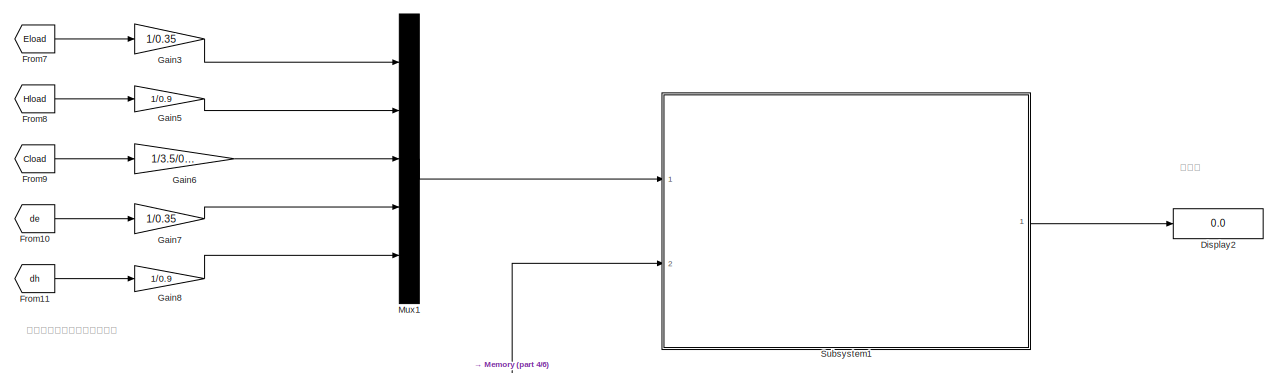
[diagram: root canvas - part 1/6, top center region]
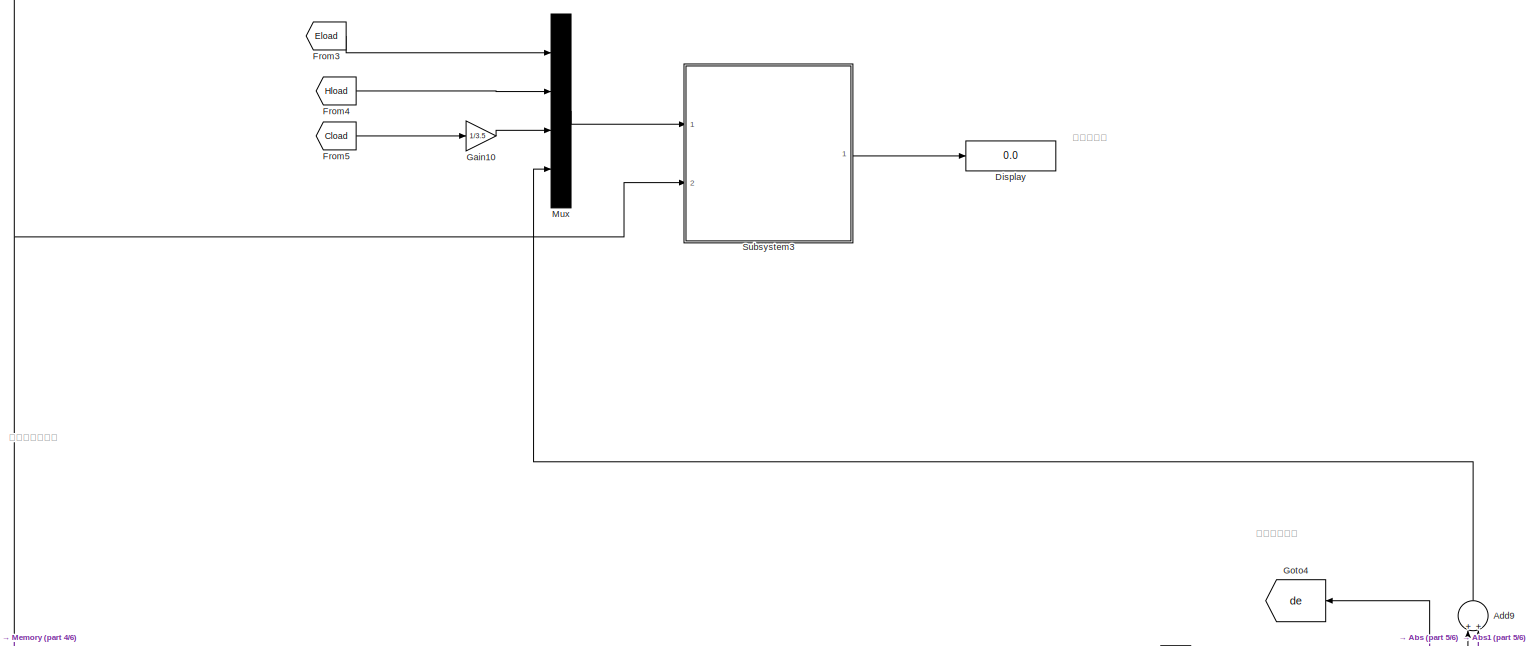
[diagram: root canvas - part 2/6, middle right region]
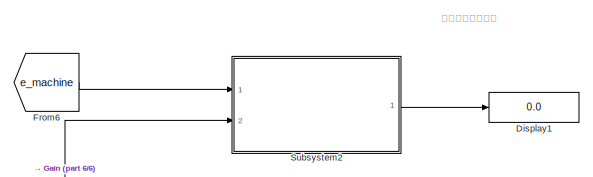
[diagram: root canvas - part 3/6, middle left region]
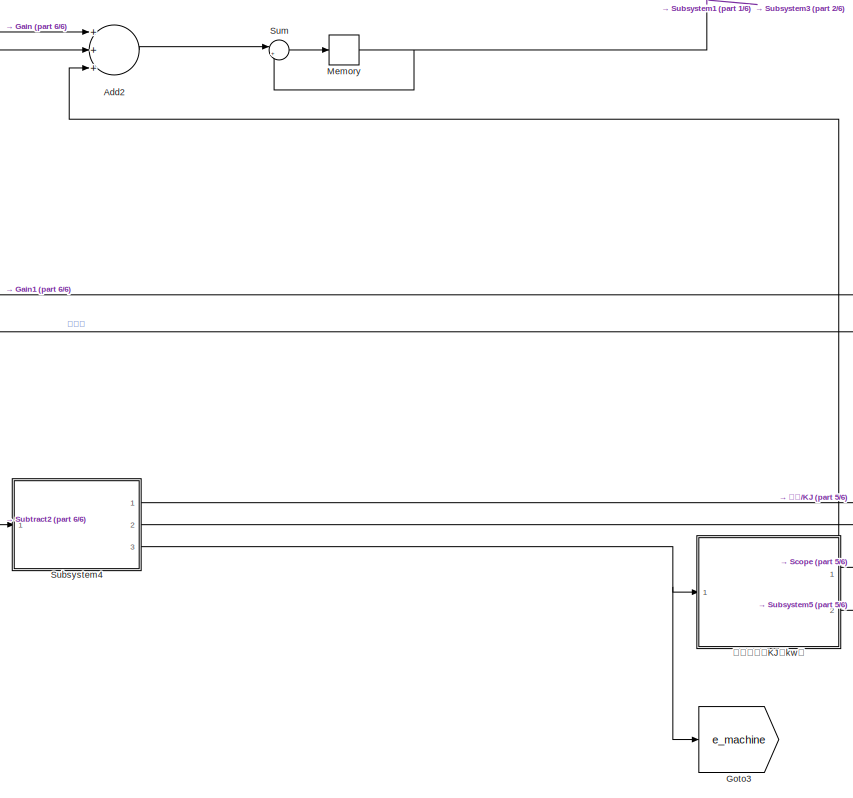
[diagram: root canvas - part 4/6, bottom center region]
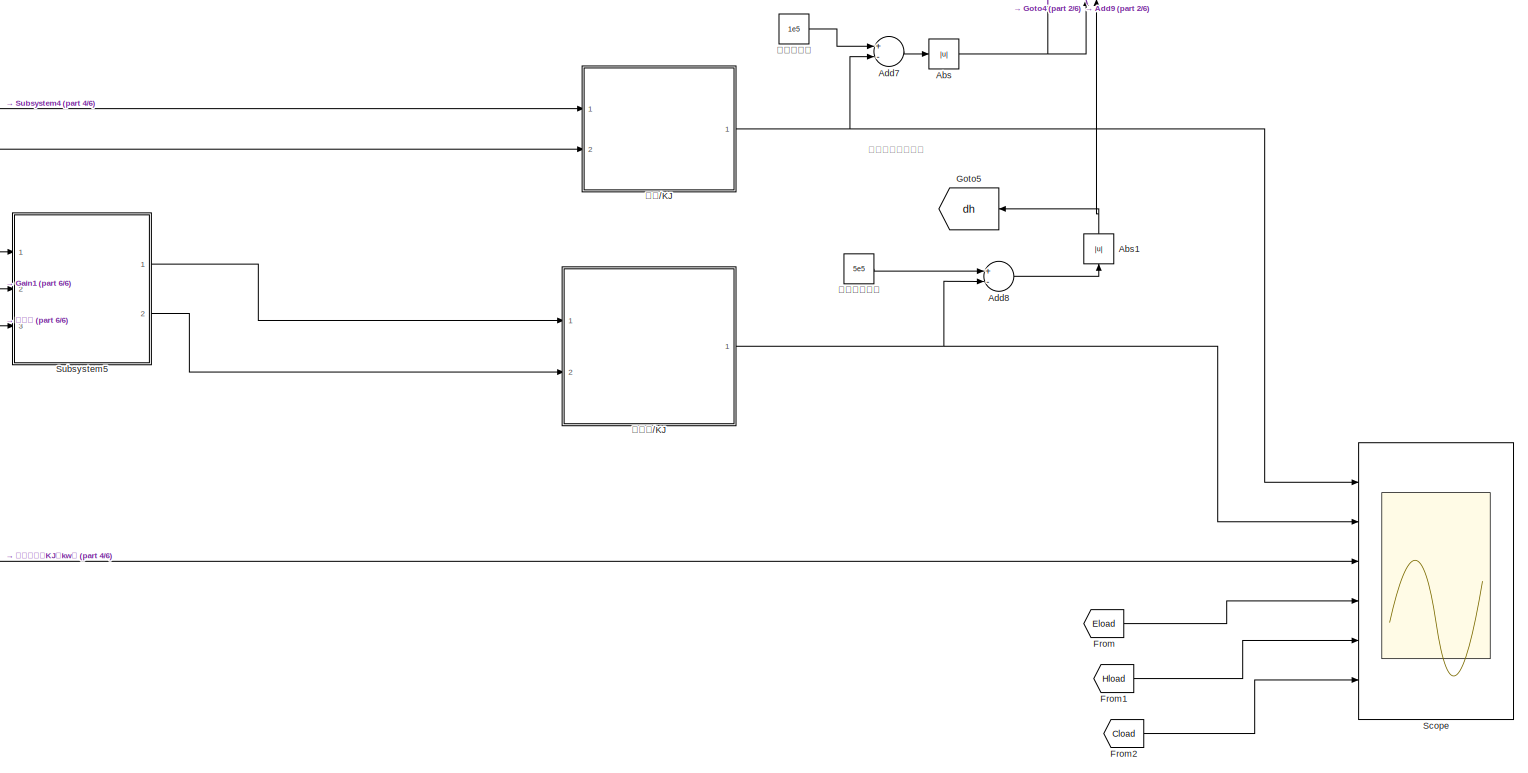
[diagram: root canvas - part 5/6, bottom right region]
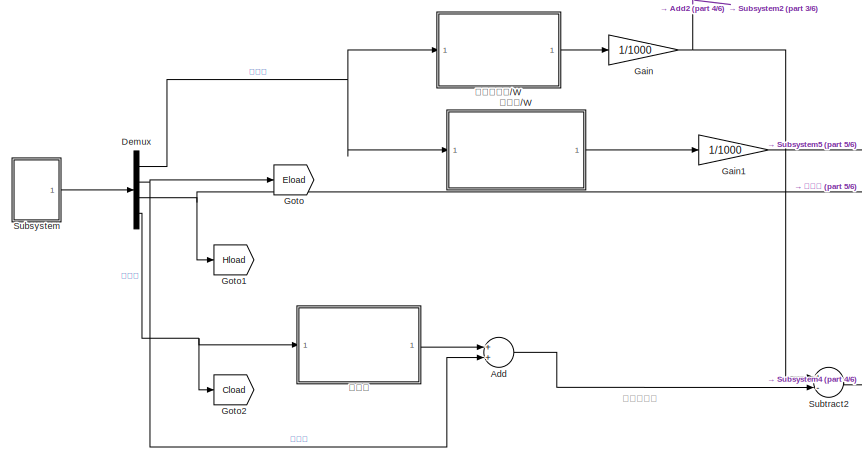
[diagram: root canvas - part 6/6, bottom left region]
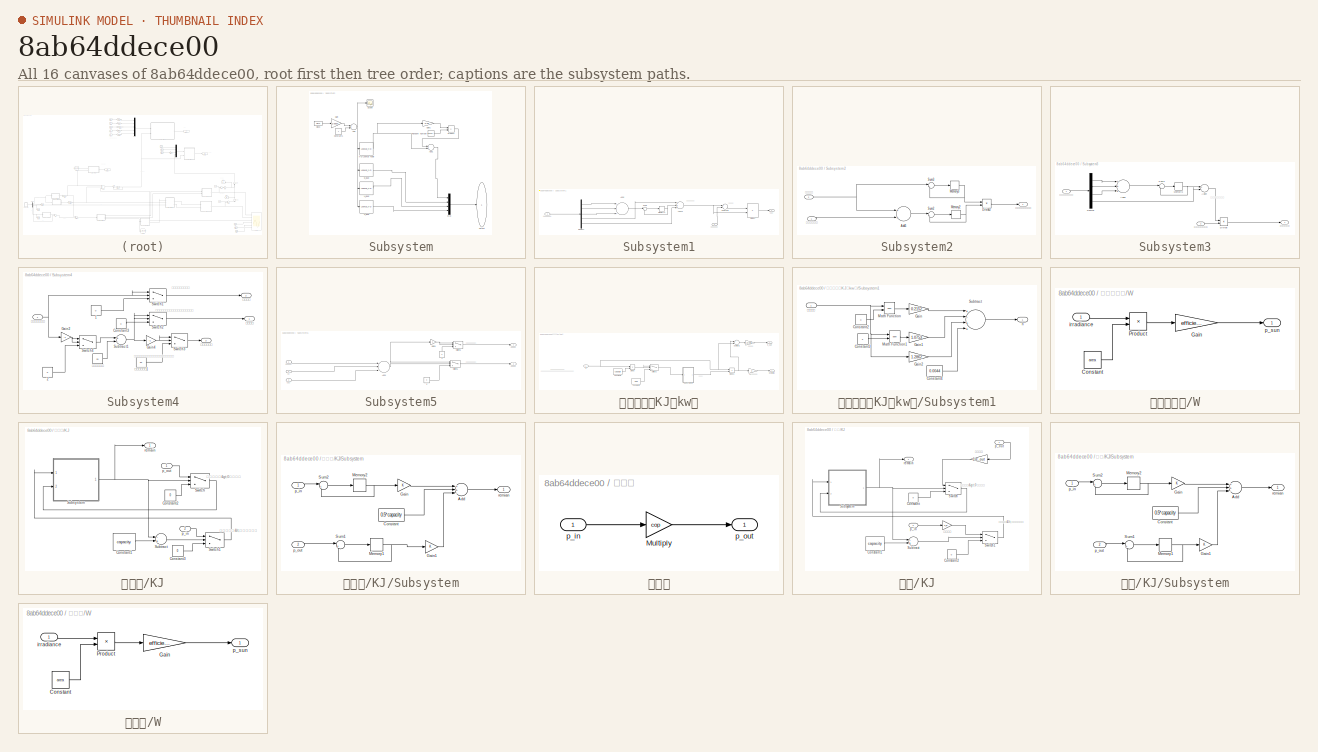
[diagram: thumbnail index - all 16 canvases of the model, root first then tree order]
MODEL slx_8ab64ddece00
KIND model
CONFIG AbsTol = auto
CONFIG EnableMultiTasking = off
CONFIG FixedStep = 1
CONFIG InitFcn = time = 1:24;\nradiation = [0	0	0	0	0	84	293	515	715	859	875	875	857	809	581	458	215	56	0	0	0	0	0	0];\nu = [23.19	9.64	3.39	0	0	3.5	5.5	6	0	0	0	22.61	18.53	0	0	0	0	13.36	18.61	25.42	35.02	22.62	36.74	33.53\n23.1	0	0	0	16.9	17.9	19.6	20.7	0	0	0	24.4	24.4	0	0	0	0	53.3	53.3	53.3	53.3	53.3	53.3	40.0\n56.1	49.7	44.9	40.4	36.8	34.8	36.2	40.4	0	0	0	129.1	102.9	0	0	0	0	20.9	25.9	41.8	60.4	72.5	76.7	75.7\n];\nE_l...<+47ch>
CONFIG MaxStep = auto
CONFIG MinStep = auto
CONFIG RelTol = 1e-3
CONFIG SampleTimeConstraint = Unconstrained
CONFIG Solver = FixedStepAuto
CONFIG SolverName = FixedStepAuto
CONFIG StartTime = 0.0
CONFIG StopTime = 86400
BLOCK [Abs] Abs
  SaturateOnIntegerOverflow = off
BLOCK [Abs] Abs1
  SaturateOnIntegerOverflow = off
BLOCK [Sum] Add
  InputSameDT = off
  OutDataTypeStr = Inherit: Inherit via internal rule
  Ports = [2, 1]
  SaturateOnIntegerOverflow = off
BLOCK [Sum] Add2
  InputSameDT = off
  Inputs = +++
  OutDataTypeStr = Inherit: Inherit via internal rule
  Ports = [3, 1]
  SaturateOnIntegerOverflow = off
BLOCK [Sum] Add7
  InputSameDT = off
  Inputs = +-
  OutDataTypeStr = Inherit: Inherit via internal rule
  Ports = [2, 1]
  SaturateOnIntegerOverflow = off
BLOCK [Sum] Add8
  InputSameDT = off
  Inputs = +-
  OutDataTypeStr = Inherit: Inherit via internal rule
  Ports = [2, 1]
  SaturateOnIntegerOverflow = off
BLOCK [Sum] Add9
  InputSameDT = off
  OutDataTypeStr = Inherit: Inherit via internal rule
  Ports = [2, 1]
  SaturateOnIntegerOverflow = off
BLOCK [Demux] Demux
  DisplayOption = bar
  Ports = [1, 4]
BLOCK [Display] Display
  Decimation = 1
  Ports = [1]
BLOCK [Display] Display1
  Decimation = 1
  Ports = [1]
BLOCK [Display] Display2
  Decimation = 1
  Ports = [1]
BLOCK [From] From
  GotoTag = Eload
BLOCK [From] From1
  GotoTag = Hload
BLOCK [From] From10
  GotoTag = de
BLOCK [From] From11
  GotoTag = dh
BLOCK [From] From2
  GotoTag = Cload
BLOCK [From] From3
  GotoTag = Eload
BLOCK [From] From4
  GotoTag = Hload
BLOCK [From] From5
  GotoTag = Cload
BLOCK [From] From6
  GotoTag = e_machine
BLOCK [From] From7
  GotoTag = Eload
BLOCK [From] From8
  GotoTag = Hload
BLOCK [From] From9
  GotoTag = Cload
BLOCK [Gain] Gain
  Gain = 1/1000
  OutDataTypeStr = Inherit: Inherit via internal rule
  ParamDataTypeStr = Inherit: Inherit via internal rule
  SaturateOnIntegerOverflow = off
BLOCK [Gain] Gain1
  Gain = 1/1000
  OutDataTypeStr = Inherit: Inherit via internal rule
  ParamDataTypeStr = Inherit: Inherit via internal rule
  SaturateOnIntegerOverflow = off
BLOCK [Gain] Gain10
  Gain = 1/3.5
  OutDataTypeStr = Inherit: Inherit via internal rule
  ParamDataTypeStr = Inherit: Inherit via internal rule
  SaturateOnIntegerOverflow = off
BLOCK [Gain] Gain3
  Gain = 1/0.35
  OutDataTypeStr = Inherit: Inherit via internal rule
  ParamDataTypeStr = Inherit: Inherit via internal rule
  SaturateOnIntegerOverflow = off
BLOCK [Gain] Gain5
  Gain = 1/0.9
  OutDataTypeStr = Inherit: Inherit via internal rule
  ParamDataTypeStr = Inherit: Inherit via internal rule
  SaturateOnIntegerOverflow = off
BLOCK [Gain] Gain6
  Gain = 1/3.5/0.35
  OutDataTypeStr = Inherit: Inherit via internal rule
  ParamDataTypeStr = Inherit: Inherit via internal rule
  SaturateOnIntegerOverflow = off
BLOCK [Gain] Gain7
  Gain = 1/0.35
  OutDataTypeStr = Inherit: Inherit via internal rule
  ParamDataTypeStr = Inherit: Inherit via internal rule
  SaturateOnIntegerOverflow = off
BLOCK [Gain] Gain8
  Gain = 1/0.9
  OutDataTypeStr = Inherit: Inherit via internal rule
  ParamDataTypeStr = Inherit: Inherit via internal rule
  SaturateOnIntegerOverflow = off
BLOCK [Goto] Goto
  GotoTag = Eload
BLOCK [Goto] Goto1
  GotoTag = Hload
BLOCK [Goto] Goto2
  GotoTag = Cload
BLOCK [Goto] Goto3
  GotoTag = e_machine
BLOCK [Goto] Goto4
  GotoTag = de
BLOCK [Goto] Goto5
  GotoTag = dh
BLOCK [Memory] Memory
BLOCK [Mux] Mux
  DisplayOption = bar
  Ports = [4, 1]
BLOCK [Mux] Mux1
  DisplayOption = bar
  Inputs = 5
  Ports = [5, 1]
BLOCK [Scope] Scope
  Floating = off
  NumInputPorts = 6
  Ports = [6]
  ScopeSpecificationString = Simulink.scopes.TimeScopeBlockCfg('CurrentConfiguration', extmgr.ConfigurationSet(extmgr.Configuration('Core','General UI',true,'FigureColor',[1 1 1]),extmgr.Configuration('Core','Source UI',true),extmgr.Configuration('Sources','WiredSimulink',true),extmgr.Configuration('Visuals','Time Domain',true,'SerializedDisplays',{struct('MinYLimReal','-19794.3253','MaxYLimReal','178109.59213','YLabelReal','...<+5638ch>
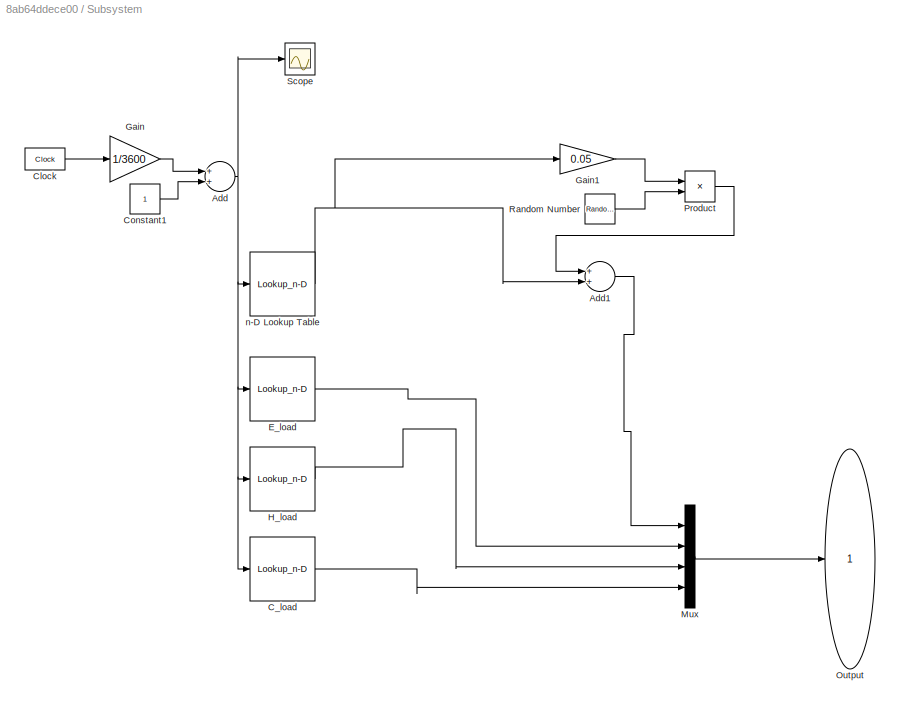
BLOCK [SubSystem] Subsystem
  Ports = [0, 1]
  RequestExecContextInheritance = off
BLOCK [Sum] Subsystem/Add
  InputSameDT = off
  OutDataTypeStr = Inherit: Inherit via internal rule
  Ports = [2, 1]
  SaturateOnIntegerOverflow = off
BLOCK [Sum] Subsystem/Add1
  InputSameDT = off
  OutDataTypeStr = Inherit: Inherit via internal rule
  Ports = [2, 1]
  SaturateOnIntegerOverflow = off
BLOCK [Lookup_n-D] Subsystem/C_load
  BreakpointsForDimension1 = time
  BreakpointsForDimension3 = [5, 7]
  InternalRulePriority = Speed
  NumberOfTableDimensions = 1
  Ports = [1, 1]
  RndMeth = Simplest
  Table = C_load
BLOCK [Clock] Subsystem/Clock
  Decimation = 1
BLOCK [Constant] Subsystem/Constant1
BLOCK [Lookup_n-D] Subsystem/E_load
  BreakpointsForDimension1 = time
  BreakpointsForDimension3 = [5, 7]
  InternalRulePriority = Speed
  NumberOfTableDimensions = 1
  Ports = [1, 1]
  RndMeth = Simplest
  Table = E_load
BLOCK [Gain] Subsystem/Gain
  Gain = 1/3600
  OutDataTypeStr = Inherit: Inherit via internal rule
  ParamDataTypeStr = Inherit: Inherit via internal rule
  SaturateOnIntegerOverflow = off
BLOCK [Gain] Subsystem/Gain1
  Gain = 0.05
  OutDataTypeStr = Inherit: Inherit via internal rule
  ParamDataTypeStr = Inherit: Inherit via internal rule
  SaturateOnIntegerOverflow = off
BLOCK [Lookup_n-D] Subsystem/H_load
  BreakpointsForDimension1 = time
  BreakpointsForDimension3 = [5, 7]
  InternalRulePriority = Speed
  NumberOfTableDimensions = 1
  Ports = [1, 1]
  RndMeth = Simplest
  Table = H_load
BLOCK [Mux] Subsystem/Mux
  DisplayOption = bar
  Ports = [4, 1]
BLOCK [Outport] Subsystem/Output
  IconDisplay = Port number
BLOCK [Product] Subsystem/Product
  InputSameDT = off
  OutDataTypeStr = Inherit: Inherit via internal rule
  Ports = [2, 1]
  RndMeth = Floor
  SaturateOnIntegerOverflow = off
BLOCK [RandomNumber] Subsystem/Random Number
  SampleTime = 60
BLOCK [Scope] Subsystem/Scope
  Floating = off
  NumInputPorts = 1
  Ports = [1]
  ScopeSpecificationString = Simulink.scopes.TimeScopeBlockCfg('CurrentConfiguration', extmgr.ConfigurationSet(extmgr.Configuration('Core','General UI',true),extmgr.Configuration('Core','Source UI',true),extmgr.Configuration('Sources','WiredSimulink',true,'DataLoggingVariableName','ScopeData1'),extmgr.Configuration('Visuals','Time Domain',true,'SerializedDisplays',{struct('MinYLimReal','-2.00000','MaxYLimReal','28.00000','YLa...<+1391ch>
BLOCK [Lookup_n-D] Subsystem/n-D Lookup Table
  BreakpointsForDimension1 = time
  BreakpointsForDimension3 = [5, 7]
  InternalRulePriority = Speed
  NumberOfTableDimensions = 1
  Ports = [1, 1]
  RndMeth = Simplest
  Table = radiation
BLOCK [SubSystem] Subsystem1
  Ports = [2, 1]
  RequestExecContextInheritance = off
BLOCK [Sum] Subsystem1/Add10
  InputSameDT = off
  Inputs = +++
  OutDataTypeStr = Inherit: Inherit via internal rule
  Ports = [3, 1]
  SaturateOnIntegerOverflow = off
BLOCK [Sum] Subsystem1/Add6
  InputSameDT = off
  Inputs = +++
  OutDataTypeStr = Inherit: Inherit via internal rule
  Ports = [3, 1]
  SaturateOnIntegerOverflow = off
BLOCK [Demux] Subsystem1/Demux1
  DisplayOption = bar
  Outputs = 5
  Ports = [1, 5]
BLOCK [Product] Subsystem1/Divide1
  InputSameDT = off
  Inputs = */
  OutDataTypeStr = Inherit: Inherit via internal rule
  Ports = [2, 1]
  RndMeth = Floor
  SaturateOnIntegerOverflow = off
BLOCK [Memory] Subsystem1/Memory4
BLOCK [Sum] Subsystem1/Subtract3
  InputSameDT = off
  Inputs = +-
  OutDataTypeStr = Inherit: Inherit via internal rule
  Ports = [2, 1]
  SaturateOnIntegerOverflow = off
BLOCK [Sum] Subsystem1/Sum4
  IconShape = round
  InputSameDT = off
  Inputs = |++
  OutDataTypeStr = Inherit: Inherit via internal rule
  Ports = [2, 1]
  SaturateOnIntegerOverflow = off
BLOCK [Inport] Subsystem1/旧系统总输入能量
  IconDisplay = Port number
BLOCK [Inport] Subsystem1/系统总输入能量
  IconDisplay = Port number
  Port = 2
BLOCK [Outport] Subsystem1/节能率
  IconDisplay = Port number
BLOCK [SubSystem] Subsystem2
  Ports = [2, 1]
  RequestExecContextInheritance = off
BLOCK [Sum] Subsystem2/Add5
  InputSameDT = off
  OutDataTypeStr = Inherit: Inherit via internal rule
  Ports = [2, 1]
  SaturateOnIntegerOverflow = off
BLOCK [Product] Subsystem2/Divide2
  InputSameDT = off
  Inputs = */
  OutDataTypeStr = Inherit: Inherit via internal rule
  Ports = [2, 1]
  RndMeth = Floor
  SaturateOnIntegerOverflow = off
BLOCK [Memory] Subsystem2/Memory2
BLOCK [Memory] Subsystem2/Memory3
BLOCK [Sum] Subsystem2/Sum2
  IconShape = round
  InputSameDT = off
  Inputs = |++
  OutDataTypeStr = Inherit: Inherit via internal rule
  Ports = [2, 1]
  SaturateOnIntegerOverflow = off
BLOCK [Sum] Subsystem2/Sum3
  IconShape = round
  InputSameDT = off
  Inputs = |++
  OutDataTypeStr = Inherit: Inherit via internal rule
  Ports = [2, 1]
  SaturateOnIntegerOverflow = off
BLOCK [Inport] Subsystem2/光伏发电
  IconDisplay = Port number
  Port = 2
BLOCK [Inport] Subsystem2/动力设备发电
  IconDisplay = Port number
BLOCK [Outport] Subsystem2/可再生能源渗透率
  IconDisplay = Port number
BLOCK [SubSystem] Subsystem3
  Ports = [2, 1]
  RequestExecContextInheritance = off
BLOCK [Sum] Subsystem3/Add3
  InputSameDT = off
  Inputs = +++
  OutDataTypeStr = Inherit: Inherit via internal rule
  Ports = [3, 1]
  SaturateOnIntegerOverflow = off
BLOCK [Sum] Subsystem3/Add4
  InputSameDT = off
  OutDataTypeStr = Inherit: Inherit via internal rule
  Ports = [2, 1]
  SaturateOnIntegerOverflow = off
BLOCK [Demux] Subsystem3/Demux
  DisplayOption = bar
  Ports = [1, 4]
BLOCK [Product] Subsystem3/Divide
  InputSameDT = off
  Inputs = */
  OutDataTypeStr = Inherit: Inherit via internal rule
  Ports = [2, 1]
  RndMeth = Floor
  SaturateOnIntegerOverflow = off
BLOCK [Memory] Subsystem3/Memory1
BLOCK [Sum] Subsystem3/Sum1
  IconShape = round
  InputSameDT = off
  Inputs = |++
  OutDataTypeStr = Inherit: Inherit via internal rule
  Ports = [2, 1]
  SaturateOnIntegerOverflow = off
BLOCK [Inport] Subsystem3/系统总输入能量
  IconDisplay = Port number
  Port = 2
BLOCK [Inport] Subsystem3/系统总输出能量
  IconDisplay = Port number
BLOCK [Outport] Subsystem3/综合利用率
  IconDisplay = Port number
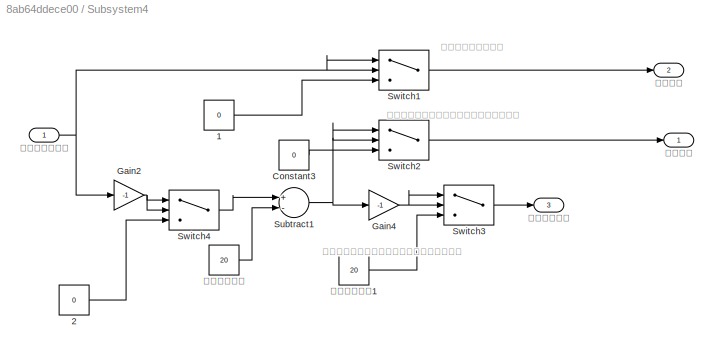
BLOCK [SubSystem] Subsystem4
  Ports = [1, 3]
  RequestExecContextInheritance = off
BLOCK [Constant] Subsystem4/1
  Value = 0
BLOCK [Constant] Subsystem4/2
  Value = 0
BLOCK [Constant] Subsystem4/Constant3
  Value = 0
BLOCK [Gain] Subsystem4/Gain2
  Gain = -1
  OutDataTypeStr = Inherit: Inherit via internal rule
  ParamDataTypeStr = Inherit: Inherit via internal rule
  SaturateOnIntegerOverflow = off
BLOCK [Gain] Subsystem4/Gain4
  Gain = -1
  OutDataTypeStr = Inherit: Inherit via internal rule
  ParamDataTypeStr = Inherit: Inherit via internal rule
  SaturateOnIntegerOverflow = off
BLOCK [Sum] Subsystem4/Subtract1
  InputSameDT = off
  Inputs = +-
  OutDataTypeStr = Inherit: Inherit via internal rule
  Ports = [2, 1]
  SaturateOnIntegerOverflow = off
BLOCK [Switch] Subsystem4/Switch1
  Criteria = u2 > Threshold
  InputSameDT = off
  SaturateOnIntegerOverflow = off
BLOCK [Switch] Subsystem4/Switch2
  Criteria = u2 > Threshold
  InputSameDT = off
  SaturateOnIntegerOverflow = off
BLOCK [Switch] Subsystem4/Switch3
  Criteria = u2 > Threshold
  InputSameDT = off
  SaturateOnIntegerOverflow = off
BLOCK [Switch] Subsystem4/Switch4
  Criteria = u2 > Threshold
  InputSameDT = off
  SaturateOnIntegerOverflow = off
BLOCK [Outport] Subsystem4/动力设备发电
  IconDisplay = Port number
  Port = 3
BLOCK [Constant] Subsystem4/动力设备容量
  Value = 20
BLOCK [Constant] Subsystem4/动力设备容量1
  Value = 20
BLOCK [Outport] Subsystem4/电池充电
  IconDisplay = Port number
  Port = 2
BLOCK [Outport] Subsystem4/电池放电
  IconDisplay = Port number
BLOCK [Inport] Subsystem4/负荷与光伏之差
  IconDisplay = Port number
BLOCK [SubSystem] Subsystem5
  Ports = [3, 2]
  RequestExecContextInheritance = off
BLOCK [Constant] Subsystem5/1
  Value = 0
BLOCK [Constant] Subsystem5/2
  Value = 0
BLOCK [Sum] Subsystem5/Add1
  InputSameDT = off
  Inputs = ++-
  OutDataTypeStr = Inherit: Inherit via internal rule
  Ports = [3, 1]
  SaturateOnIntegerOverflow = off
BLOCK [Gain] Subsystem5/Gain9
  Gain = -1
  OutDataTypeStr = Inherit: Inherit via internal rule
  ParamDataTypeStr = Inherit: Inherit via internal rule
  SaturateOnIntegerOverflow = off
BLOCK [Switch] Subsystem5/Switch5
  Criteria = u2 > Threshold
  InputSameDT = off
  SaturateOnIntegerOverflow = off
BLOCK [Switch] Subsystem5/Switch6
  Criteria = u2 > Threshold
  InputSameDT = off
  SaturateOnIntegerOverflow = off
BLOCK [Inport] Subsystem5/动力设备发热
  IconDisplay = Port number
BLOCK [Inport] Subsystem5/热负荷
  IconDisplay = Port number
  Port = 3
BLOCK [Outport] Subsystem5/蓄热罐放热
  IconDisplay = Port number
BLOCK [Outport] Subsystem5/蓄热罐蓄热
  IconDisplay = Port number
  Port = 2
BLOCK [Inport] Subsystem5/集热
  IconDisplay = Port number
  Port = 2
BLOCK [Sum] Subtract2
  InputSameDT = off
  Inputs = +-
  OutDataTypeStr = Inherit: Inherit via internal rule
  Ports = [2, 1]
  SaturateOnIntegerOverflow = off
BLOCK [Sum] Sum
  IconShape = round
  InputSameDT = off
  Inputs = |++
  OutDataTypeStr = Inherit: Inherit via internal rule
  Ports = [2, 1]
  SaturateOnIntegerOverflow = off
BLOCK [Constant] 储热罐初始值
  Value = 5e5
BLOCK [SubSystem] 动力设备（KJ、kw）
  Ports = [1, 2]
  RequestExecContextInheritance = off
BLOCK [Gain] 动力设备（KJ、kw）/1s的燃料投放量
  OutDataTypeStr = Inherit: Inherit via internal rule
  ParamDataTypeStr = Inherit: Inherit via internal rule
  SaturateOnIntegerOverflow = off
BLOCK [Constant] 动力设备（KJ、kw）/Constant2
  Value = capacity
BLOCK [Constant] 动力设备（KJ、kw）/Constant3
  Value = 0.25
BLOCK [Product] 动力设备（KJ、kw）/Divide
  InputSameDT = off
  Inputs = */
  OutDataTypeStr = Inherit: Inherit via internal rule
  Ports = [2, 1]
  RndMeth = Floor
  SaturateOnIntegerOverflow = off
BLOCK [Product] 动力设备（KJ、kw）/Divide1
  InputSameDT = off
  Inputs = */
  OutDataTypeStr = Inherit: Inherit via internal rule
  Ports = [2, 1]
  RndMeth = Floor
  SaturateOnIntegerOverflow = off
BLOCK [SubSystem] 动力设备（KJ、kw）/Subsystem1
  Ports = [1, 1]
  RequestExecContextInheritance = off
BLOCK [Constant] 动力设备（KJ、kw）/Subsystem1/Constant2
  Value = 3
BLOCK [Constant] 动力设备（KJ、kw）/Subsystem1/Constant3
  Value = 2
BLOCK [Constant] 动力设备（KJ、kw）/Subsystem1/Constant4
  Value = 0.0044
BLOCK [Gain] 动力设备（KJ、kw）/Subsystem1/Gain
  Gain = 0.2152
  OutDataTypeStr = Inherit: Inherit via internal rule
  ParamDataTypeStr = Inherit: Inherit via internal rule
  SaturateOnIntegerOverflow = off
BLOCK [Gain] 动力设备（KJ、kw）/Subsystem1/Gain1
  Gain = 1.0753
  OutDataTypeStr = Inherit: Inherit via internal rule
  ParamDataTypeStr = Inherit: Inherit via internal rule
  SaturateOnIntegerOverflow = off
BLOCK [Gain] 动力设备（KJ、kw）/Subsystem1/Gain2
  Gain = 1.2862
  OutDataTypeStr = Inherit: Inherit via internal rule
  ParamDataTypeStr = Inherit: Inherit via internal rule
  SaturateOnIntegerOverflow = off
BLOCK [Math] 动力设备（KJ、kw）/Subsystem1/Math Function
  Operator = pow
  Ports = [2, 1]
  SignedPower = off
BLOCK [Math] 动力设备（KJ、kw）/Subsystem1/Math Function1
  Operator = pow
  Ports = [2, 1]
  SignedPower = off
BLOCK [Sum] 动力设备（KJ、kw）/Subsystem1/Subtract
  InputSameDT = off
  Inputs = +-++
  OutDataTypeStr = Inherit: Inherit via internal rule
  Ports = [4, 1]
  SaturateOnIntegerOverflow = off
BLOCK [Outport] 动力设备（KJ、kw）/Subsystem1/n
  IconDisplay = Port number
BLOCK [Inport] 动力设备（KJ、kw）/Subsystem1/负荷比例
  IconDisplay = Port number
BLOCK [Sum] 动力设备（KJ、kw）/Subtract1
  InputSameDT = off
  Inputs = +-
  OutDataTypeStr = Inherit: Inherit via internal rule
  Ports = [2, 1]
  SaturateOnIntegerOverflow = off
BLOCK [Switch] 动力设备（KJ、kw）/Switch2
  Criteria = u2 > Threshold
  InputSameDT = off
  SaturateOnIntegerOverflow = off
  Threshold = 0.25
BLOCK [Inport] 动力设备（KJ、kw）/e
  IconDisplay = Port number
BLOCK [Outport] 动力设备（KJ、kw）/h_out
  IconDisplay = Port number
  Port = 2
BLOCK [Outport] 动力设备（KJ、kw）/power//kJ
  IconDisplay = Port number
BLOCK [Gain] 动力设备（KJ、kw）/热回收效率
  Gain = e_hremain
  OutDataTypeStr = Inherit: Inherit via internal rule
  ParamDataTypeStr = Inherit: Inherit via internal rule
  SaturateOnIntegerOverflow = off
BLOCK [SubSystem] 太阳能发电//W
  Ports = [1, 1]
  RequestExecContextInheritance = off
BLOCK [Constant] 太阳能发电//W/Constant
  Value = area
BLOCK [Gain] 太阳能发电//W/Gain
  Gain = efficiency
  OutDataTypeStr = Inherit: Inherit via internal rule
  ParamDataTypeStr = Inherit: Inherit via internal rule
  SaturateOnIntegerOverflow = off
BLOCK [Product] 太阳能发电//W/Product
  InputSameDT = off
  OutDataTypeStr = Inherit: Inherit via internal rule
  Ports = [2, 1]
  RndMeth = Floor
  SaturateOnIntegerOverflow = off
BLOCK [Inport] 太阳能发电//W/irradiance 
  IconDisplay = Port number
BLOCK [Outport] 太阳能发电//W/p_sun
  IconDisplay = Port number
BLOCK [SubSystem] 热水罐//KJ
  Ports = [2, 1]
  RequestExecContextInheritance = off
BLOCK [Constant] 热水罐//KJ/Constant1
  Value = capacity
BLOCK [Constant] 热水罐//KJ/Constant2
  Value = 0
BLOCK [Constant] 热水罐//KJ/Constant3
  Value = 0
BLOCK [SubSystem] 热水罐//KJ/Subsystem
  Ports = [2, 1]
  RequestExecContextInheritance = off
BLOCK [Sum] 热水罐//KJ/Subsystem/Add
  InputSameDT = off
  Inputs = ++-
  OutDataTypeStr = Inherit: Inherit via internal rule
  Ports = [3, 1]
  SaturateOnIntegerOverflow = off
BLOCK [Constant] 热水罐//KJ/Subsystem/Constant
  Value = 0.5*capacity
BLOCK [Gain] 热水罐//KJ/Subsystem/Gain
  OutDataTypeStr = Inherit: Inherit via internal rule
  ParamDataTypeStr = Inherit: Inherit via internal rule
  SaturateOnIntegerOverflow = off
BLOCK [Gain] 热水罐//KJ/Subsystem/Gain1
  OutDataTypeStr = Inherit: Inherit via internal rule
  ParamDataTypeStr = Inherit: Inherit via internal rule
  SaturateOnIntegerOverflow = off
BLOCK [Memory] 热水罐//KJ/Subsystem/Memory1
BLOCK [Memory] 热水罐//KJ/Subsystem/Memory2
BLOCK [Sum] 热水罐//KJ/Subsystem/Sum1
  IconShape = round
  InputSameDT = off
  Inputs = |++
  OutDataTypeStr = Inherit: Inherit via internal rule
  Ports = [2, 1]
  SaturateOnIntegerOverflow = off
BLOCK [Sum] 热水罐//KJ/Subsystem/Sum2
  IconShape = round
  InputSameDT = off
  Inputs = |++
  OutDataTypeStr = Inherit: Inherit via internal rule
  Ports = [2, 1]
  SaturateOnIntegerOverflow = off
BLOCK [Inport] 热水罐//KJ/Subsystem/p_in
  IconDisplay = Port number
BLOCK [Inport] 热水罐//KJ/Subsystem/p_out
  IconDisplay = Port number
  Port = 2
BLOCK [Outport] 热水罐//KJ/Subsystem/remian
  IconDisplay = Port number
  VectorParamsAs1DForOutWhenUnconnected = off
BLOCK [Sum] 热水罐//KJ/Subtract
  InputSameDT = off
  Inputs = -+
  OutDataTypeStr = Inherit: Inherit via internal rule
  Ports = [2, 1]
  SaturateOnIntegerOverflow = off
BLOCK [Switch] 热水罐//KJ/Switch
  Criteria = u2 > Threshold
  InputSameDT = off
  SaturateOnIntegerOverflow = off
BLOCK [Switch] 热水罐//KJ/Switch1
  Criteria = u2 > Threshold
  InputSameDT = off
  SaturateOnIntegerOverflow = off
BLOCK [Inport] 热水罐//KJ/p_in
  IconDisplay = Port number
  Port = 2
BLOCK [Inport] 热水罐//KJ/p_out
  IconDisplay = Port number
BLOCK [Outport] 热水罐//KJ/remain
  IconDisplay = Port number
  VectorParamsAs1DForOutWhenUnconnected = off
BLOCK [SubSystem] 电制冷
  Ports = [1, 1]
  RequestExecContextInheritance = off
BLOCK [Gain] 电制冷/Multiply
  Gain = cop
  OutDataTypeStr = Inherit: Inherit via internal rule
  ParamDataTypeStr = Inherit: Inherit via internal rule
  SaturateOnIntegerOverflow = off
BLOCK [Inport] 电制冷/p_in
  IconDisplay = Port number
BLOCK [Outport] 电制冷/p_out
  IconDisplay = Port number
BLOCK [SubSystem] 电池//KJ
  Ports = [2, 1]
  RequestExecContextInheritance = off
BLOCK [Constant] 电池//KJ/Constant
  Value = 0
BLOCK [Constant] 电池//KJ/Constant1
  Value = capacity
BLOCK [Constant] 电池//KJ/Constant2
  Value = 0
BLOCK [SubSystem] 电池//KJ/Subsystem
  Ports = [2, 1]
  RequestExecContextInheritance = off
BLOCK [Sum] 电池//KJ/Subsystem/Add
  InputSameDT = off
  Inputs = ++-
  OutDataTypeStr = Inherit: Inherit via internal rule
  Ports = [3, 1]
  SaturateOnIntegerOverflow = off
BLOCK [Constant] 电池//KJ/Subsystem/Constant
  Value = 0.5*capacity
BLOCK [Gain] 电池//KJ/Subsystem/Gain
  OutDataTypeStr = Inherit: Inherit via internal rule
  ParamDataTypeStr = Inherit: Inherit via internal rule
  SaturateOnIntegerOverflow = off
BLOCK [Gain] 电池//KJ/Subsystem/Gain1
  OutDataTypeStr = Inherit: Inherit via internal rule
  ParamDataTypeStr = Inherit: Inherit via internal rule
  SaturateOnIntegerOverflow = off
BLOCK [Memory] 电池//KJ/Subsystem/Memory1
BLOCK [Memory] 电池//KJ/Subsystem/Memory2
BLOCK [Sum] 电池//KJ/Subsystem/Sum1
  IconShape = round
  InputSameDT = off
  Inputs = |++
  OutDataTypeStr = Inherit: Inherit via internal rule
  Ports = [2, 1]
  SaturateOnIntegerOverflow = off
BLOCK [Sum] 电池//KJ/Subsystem/Sum2
  IconShape = round
  InputSameDT = off
  Inputs = |++
  OutDataTypeStr = Inherit: Inherit via internal rule
  Ports = [2, 1]
  SaturateOnIntegerOverflow = off
BLOCK [Inport] 电池//KJ/Subsystem/p_in
  IconDisplay = Port number
BLOCK [Inport] 电池//KJ/Subsystem/p_out
  IconDisplay = Port number
  Port = 2
BLOCK [Outport] 电池//KJ/Subsystem/remian
  IconDisplay = Port number
  VectorParamsAs1DForOutWhenUnconnected = off
BLOCK [Sum] 电池//KJ/Subtract
  InputSameDT = off
  Inputs = -+
  OutDataTypeStr = Inherit: Inherit via internal rule
  Ports = [2, 1]
  SaturateOnIntegerOverflow = off
BLOCK [Switch] 电池//KJ/Switch
  Criteria = u2 > Threshold
  InputSameDT = off
  SaturateOnIntegerOverflow = off
BLOCK [Switch] 电池//KJ/Switch1
  Criteria = u2 > Threshold
  InputSameDT = off
  SaturateOnIntegerOverflow = off
BLOCK [Inport] 电池//KJ/p_in
  IconDisplay = Port number
  Port = 2
BLOCK [Inport] 电池//KJ/p_out
  IconDisplay = Port number
BLOCK [Outport] 电池//KJ/remain
  IconDisplay = Port number
  VectorParamsAs1DForOutWhenUnconnected = off
BLOCK [Gain] 电池//KJ/充电效率
  Gain = e_in
  OutDataTypeStr = Inherit: Inherit via internal rule
  ParamDataTypeStr = Inherit: Inherit via internal rule
  SaturateOnIntegerOverflow = off
BLOCK [Gain] 电池//KJ/放电效率
  Gain = 1/e_out
  OutDataTypeStr = Inherit: Inherit via internal rule
  ParamDataTypeStr = Inherit: Inherit via internal rule
  SaturateOnIntegerOverflow = off
BLOCK [Constant] 电池初始值
  Value = 1e5
BLOCK [SubSystem] 集热器//W
  Ports = [1, 1]
  RequestExecContextInheritance = off
BLOCK [Constant] 集热器//W/Constant
  Value = area
BLOCK [Gain] 集热器//W/Gain
  Gain = efficiency
  OutDataTypeStr = Inherit: Inherit via internal rule
  ParamDataTypeStr = Inherit: Inherit via internal rule
  SaturateOnIntegerOverflow = off
BLOCK [Product] 集热器//W/Product
  InputSameDT = off
  OutDataTypeStr = Inherit: Inherit via internal rule
  Ports = [2, 1]
  RndMeth = Floor
  SaturateOnIntegerOverflow = off
BLOCK [Inport] 集热器//W/irradiance 
  IconDisplay = Port number
BLOCK [Outport] 集热器//W/p_sun
  IconDisplay = Port number
ANNOTATION (root): 可再生能源渗透率
ANNOTATION (root): 电储热罐能量变化
ANNOTATION (root): 电池能量变化
ANNOTATION (root): 系统总输入能量
ANNOTATION (root): 综合利用率
ANNOTATION (root): 节能率
ANNOTATION (root): 系统输出能量除以旧系统效率
ANNOTATION (root): 等效电负荷
ANNOTATION Subsystem1: 旧系统总输入能量
ANNOTATION Subsystem1: 节省的能量
ANNOTATION Subsystem3: 系统总输出能量
ANNOTATION Subsystem4: 光伏发电大于电负荷
ANNOTATION Subsystem4: 负荷大于动力设备容量时不足的量电池放电
ANNOTATION Subsystem4: 负荷大于动力设备容量时动力设备满负荷运行
ANNOTATION Subsystem5: 热负荷小于发热和集热
ANNOTATION Subsystem5: 热负荷大于发热和集热
ANNOTATION 动力设备（KJ、kw）: 在动力设备容量范围内的电需求 （由于在输入之前已经决策好电池是否供电所以输入电需求在容量范围内）
ANNOTATION 动力设备（KJ、kw）: 运行效率
ANNOTATION 热水罐//KJ: 蓄热罐余量>0允许放热
ANNOTATION 热水罐//KJ: 蓄热罐余量<容量允许储热
ANNOTATION 电池//KJ: 电池余量>0允许放电
ANNOTATION 电池//KJ: 电池余量<容量允许充电
NET Abs1:1 -> Add9:2, Goto5:1
NET Abs:1 -> Add9:1, Goto4:1
LINE Add2:1 -> Sum:1
LINE Add7:1 -> Abs:1
LINE Add8:1 -> Abs1:1
LINE Add9:1 -> Mux:4
LINE Add:1 -> Subtract2:2
NET Demux:1 -> 太阳能发电//W:1, 集热器//W:1
NET Demux:2 -> Add:2, Goto:1
NET Demux:3 -> Goto1:1, Subsystem5:3
NET Demux:4 -> Goto2:1, 电制冷:1
LINE From10:1 -> Gain7:1
LINE From11:1 -> Gain8:1
LINE From1:1 -> Scope:5
LINE From2:1 -> Scope:6
LINE From3:1 -> Mux:1
LINE From4:1 -> Mux:2
LINE From5:1 -> Gain10:1
LINE From6:1 -> Subsystem2:1
LINE From7:1 -> Gain3:1
LINE From8:1 -> Gain5:1
LINE From9:1 -> Gain6:1
LINE From:1 -> Scope:4
LINE Gain10:1 -> Mux:3
NET Gain1:1 -> Add2:2, Subsystem5:2
LINE Gain3:1 -> Mux1:1
LINE Gain5:1 -> Mux1:2
LINE Gain6:1 -> Mux1:3
LINE Gain7:1 -> Mux1:4
LINE Gain8:1 -> Mux1:5
NET Gain:1 -> Add2:1, Subsystem2:2, Subtract2:1
NET Memory:1 -> Subsystem1:2, Subsystem3:2, Sum:2
LINE Mux1:1 -> Subsystem1:1
LINE Mux:1 -> Subsystem3:1
LINE Subsystem/Add1:1 -> Subsystem/Mux:1
NET Subsystem/Add:1 -> Subsystem/C_load:1, Subsystem/E_load:1, Subsystem/H_load:1, Subsystem/Scope:1, Subsystem/n-D Lookup Table:1
LINE Subsystem/C_load:1 -> Subsystem/Mux:4
LINE Subsystem/Clock:1 -> Subsystem/Gain:1
LINE Subsystem/Constant1:1 -> Subsystem/Add:2
LINE Subsystem/E_load:1 -> Subsystem/Mux:2
LINE Subsystem/Gain1:1 -> Subsystem/Product:1
LINE Subsystem/Gain:1 -> Subsystem/Add:1
LINE Subsystem/H_load:1 -> Subsystem/Mux:3
LINE Subsystem/Mux:1 -> Subsystem/Output:1
LINE Subsystem/Product:1 -> Subsystem/Add1:1
LINE Subsystem/Random Number:1 -> Subsystem/Product:2
NET Subsystem/n-D Lookup Table:1 -> Subsystem/Add1:2, Subsystem/Gain1:1
NET Subsystem1/Add10:1 -> Subsystem1/Divide1:2, Subsystem1/Subtract3:1
LINE Subsystem1/Add6:1 -> Subsystem1/Sum4:1
LINE Subsystem1/Demux1:1 -> Subsystem1/Add6:1
LINE Subsystem1/Demux1:2 -> Subsystem1/Add6:2
LINE Subsystem1/Demux1:3 -> Subsystem1/Add6:3
LINE Subsystem1/Demux1:4 -> Subsystem1/Add10:1
LINE Subsystem1/Demux1:5 -> Subsystem1/Add10:3
LINE Subsystem1/Divide1:1 -> Subsystem1/节能率:1
NET Subsystem1/Memory4:1 -> Subsystem1/Add10:2, Subsystem1/Sum4:2
LINE Subsystem1/Subtract3:1 -> Subsystem1/Divide1:1
LINE Subsystem1/Sum4:1 -> Subsystem1/Memory4:1
LINE Subsystem1/旧系统总输入能量:1 -> Subsystem1/Demux1:1
LINE Subsystem1/系统总输入能量:1 -> Subsystem1/Subtract3:2
LINE Subsystem1:1 -> Display2:1
LINE Subsystem2/Add5:1 -> Subsystem2/Sum2:1
LINE Subsystem2/Divide2:1 -> Subsystem2/可再生能源渗透率:1
NET Subsystem2/Memory2:1 -> Subsystem2/Divide2:2, Subsystem2/Sum2:2
NET Subsystem2/Memory3:1 -> Subsystem2/Divide2:1, Subsystem2/Sum3:2
LINE Subsystem2/Sum2:1 -> Subsystem2/Memory2:1
LINE Subsystem2/Sum3:1 -> Subsystem2/Memory3:1
NET Subsystem2/光伏发电:1 -> Subsystem2/Add5:1, Subsystem2/Sum3:1
LINE Subsystem2/动力设备发电:1 -> Subsystem2/Add5:2
LINE Subsystem2:1 -> Display1:1
LINE Subsystem3/Add3:1 -> Subsystem3/Sum1:1
LINE Subsystem3/Add4:1 -> Subsystem3/Divide:1
LINE Subsystem3/Demux:1 -> Subsystem3/Add3:1
LINE Subsystem3/Demux:2 -> Subsystem3/Add3:2
LINE Subsystem3/Demux:3 -> Subsystem3/Add3:3
LINE Subsystem3/Demux:4 -> Subsystem3/Add4:2
LINE Subsystem3/Divide:1 -> Subsystem3/综合利用率:1
NET Subsystem3/Memory1:1 -> Subsystem3/Add4:1, Subsystem3/Sum1:2
LINE Subsystem3/Sum1:1 -> Subsystem3/Memory1:1
LINE Subsystem3/系统总输入能量:1 -> Subsystem3/Divide:2
LINE Subsystem3/系统总输出能量:1 -> Subsystem3/Demux:1
LINE Subsystem3:1 -> Display:1
LINE Subsystem4/1:1 -> Subsystem4/Switch1:3
LINE Subsystem4/2:1 -> Subsystem4/Switch4:3
LINE Subsystem4/Constant3:1 -> Subsystem4/Switch2:3
NET Subsystem4/Gain2:1 -> Subsystem4/Switch4:1, Subsystem4/Switch4:2
NET Subsystem4/Gain4:1 -> Subsystem4/Switch3:1, Subsystem4/Switch3:2
NET Subsystem4/Subtract1:1 -> Subsystem4/Gain4:1, Subsystem4/Switch2:1, Subsystem4/Switch2:2
LINE Subsystem4/Switch1:1 -> Subsystem4/电池充电:1
LINE Subsystem4/Switch2:1 -> Subsystem4/电池放电:1
LINE Subsystem4/Switch3:1 -> Subsystem4/动力设备发电:1
LINE Subsystem4/Switch4:1 -> Subsystem4/Subtract1:1
LINE Subsystem4/动力设备容量1:1 -> Subsystem4/Switch3:3
LINE Subsystem4/动力设备容量:1 -> Subsystem4/Subtract1:2
NET Subsystem4/负荷与光伏之差:1 -> Subsystem4/Gain2:1, Subsystem4/Switch1:1, Subsystem4/Switch1:2
LINE Subsystem4:1 -> 电池//KJ:1
LINE Subsystem4:2 -> 电池//KJ:2
NET Subsystem4:3 -> Goto3:1, 动力设备（KJ、kw）:1
LINE Subsystem5/1:1 -> Subsystem5/Switch6:3
LINE Subsystem5/2:1 -> Subsystem5/Switch5:3
NET Subsystem5/Add1:1 -> Subsystem5/Gain9:1, Subsystem5/Switch5:1, Subsystem5/Switch5:2
NET Subsystem5/Gain9:1 -> Subsystem5/Switch6:1, Subsystem5/Switch6:2
LINE Subsystem5/Switch5:1 -> Subsystem5/蓄热罐蓄热:1
LINE Subsystem5/Switch6:1 -> Subsystem5/蓄热罐放热:1
LINE Subsystem5/动力设备发热:1 -> Subsystem5/Add1:1
LINE Subsystem5/热负荷:1 -> Subsystem5/Add1:3
LINE Subsystem5/集热:1 -> Subsystem5/Add1:2
LINE Subsystem5:1 -> 热水罐//KJ:1
LINE Subsystem5:2 -> 热水罐//KJ:2
LINE Subsystem:1 -> Demux:1
LINE Subtract2:1 -> Subsystem4:1
LINE Sum:1 -> Memory:1
LINE 储热罐初始值:1 -> Add8:1
LINE 动力设备（KJ、kw）/1s的燃料投放量:1 -> 动力设备（KJ、kw）/power//kJ:1
LINE 动力设备（KJ、kw）/Constant2:1 -> 动力设备（KJ、kw）/Divide:2
LINE 动力设备（KJ、kw）/Constant3:1 -> 动力设备（KJ、kw）/Switch2:3
NET 动力设备（KJ、kw）/Divide1:1 -> 动力设备（KJ、kw）/1s的燃料投放量:1, 动力设备（KJ、kw）/Subtract1:1
NET 动力设备（KJ、kw）/Divide:1 -> 动力设备（KJ、kw）/Switch2:1, 动力设备（KJ、kw）/Switch2:2
LINE 动力设备（KJ、kw）/Subsystem1/Constant2:1 -> 动力设备（KJ、kw）/Subsystem1/Math Function:2
LINE 动力设备（KJ、kw）/Subsystem1/Constant3:1 -> 动力设备（KJ、kw）/Subsystem1/Math Function1:2
LINE 动力设备（KJ、kw）/Subsystem1/Constant4:1 -> 动力设备（KJ、kw）/Subsystem1/Subtract:4
LINE 动力设备（KJ、kw）/Subsystem1/Gain1:1 -> 动力设备（KJ、kw）/Subsystem1/Subtract:2
LINE 动力设备（KJ、kw）/Subsystem1/Gain2:1 -> 动力设备（KJ、kw）/Subsystem1/Subtract:3
LINE 动力设备（KJ、kw）/Subsystem1/Gain:1 -> 动力设备（KJ、kw）/Subsystem1/Subtract:1
LINE 动力设备（KJ、kw）/Subsystem1/Math Function1:1 -> 动力设备（KJ、kw）/Subsystem1/Gain1:1
LINE 动力设备（KJ、kw）/Subsystem1/Math Function:1 -> 动力设备（KJ、kw）/Subsystem1/Gain:1
LINE 动力设备（KJ、kw）/Subsystem1/Subtract:1 -> 动力设备（KJ、kw）/Subsystem1/n:1
NET 动力设备（KJ、kw）/Subsystem1/负荷比例:1 -> 动力设备（KJ、kw）/Subsystem1/Gain2:1, 动力设备（KJ、kw）/Subsystem1/Math Function1:1, 动力设备（KJ、kw）/Subsystem1/Math Function:1
LINE 动力设备（KJ、kw）/Subsystem1:1 -> 动力设备（KJ、kw）/Divide1:2
LINE 动力设备（KJ、kw）/Subtract1:1 -> 动力设备（KJ、kw）/热回收效率:1
LINE 动力设备（KJ、kw）/Switch2:1 -> 动力设备（KJ、kw）/Subsystem1:1
NET 动力设备（KJ、kw）/e:1 -> 动力设备（KJ、kw）/Divide1:1, 动力设备（KJ、kw）/Divide:1, 动力设备（KJ、kw）/Subtract1:2
LINE 动力设备（KJ、kw）/热回收效率:1 -> 动力设备（KJ、kw）/h_out:1
NET 动力设备（KJ、kw）:1 -> Add2:3, Scope:3
LINE 动力设备（KJ、kw）:2 -> Subsystem5:1
LINE 太阳能发电//W/Constant:1 -> 太阳能发电//W/Product:2
LINE 太阳能发电//W/Gain:1 -> 太阳能发电//W/p_sun:1
LINE 太阳能发电//W/Product:1 -> 太阳能发电//W/Gain:1
LINE 太阳能发电//W/irradiance :1 -> 太阳能发电//W/Product:1
LINE 太阳能发电//W:1 -> Gain:1
LINE 热水罐//KJ/Constant1:1 -> 热水罐//KJ/Subtract:2
LINE 热水罐//KJ/Constant2:1 -> 热水罐//KJ/Switch:3
LINE 热水罐//KJ/Constant3:1 -> 热水罐//KJ/Switch1:3
LINE 热水罐//KJ/Subsystem/Add:1 -> 热水罐//KJ/Subsystem/remian:1
LINE 热水罐//KJ/Subsystem/Constant:1 -> 热水罐//KJ/Subsystem/Add:2
LINE 热水罐//KJ/Subsystem/Gain1:1 -> 热水罐//KJ/Subsystem/Add:3
LINE 热水罐//KJ/Subsystem/Gain:1 -> 热水罐//KJ/Subsystem/Add:1
NET 热水罐//KJ/Subsystem/Memory1:1 -> 热水罐//KJ/Subsystem/Gain1:1, 热水罐//KJ/Subsystem/Sum1:2
NET 热水罐//KJ/Subsystem/Memory2:1 -> 热水罐//KJ/Subsystem/Gain:1, 热水罐//KJ/Subsystem/Sum2:2
LINE 热水罐//KJ/Subsystem/Sum1:1 -> 热水罐//KJ/Subsystem/Memory1:1
LINE 热水罐//KJ/Subsystem/Sum2:1 -> 热水罐//KJ/Subsystem/Memory2:1
LINE 热水罐//KJ/Subsystem/p_in:1 -> 热水罐//KJ/Subsystem/Sum2:1
LINE 热水罐//KJ/Subsystem/p_out:1 -> 热水罐//KJ/Subsystem/Sum1:1
NET 热水罐//KJ/Subsystem:1 -> 热水罐//KJ/Subtract:1, 热水罐//KJ/Switch:2, 热水罐//KJ/remain:1
LINE 热水罐//KJ/Subtract:1 -> 热水罐//KJ/Switch1:2
LINE 热水罐//KJ/Switch1:1 -> 热水罐//KJ/Subsystem:1
LINE 热水罐//KJ/Switch:1 -> 热水罐//KJ/Subsystem:2
LINE 热水罐//KJ/p_in:1 -> 热水罐//KJ/Switch1:1
LINE 热水罐//KJ/p_out:1 -> 热水罐//KJ/Switch:1
NET 热水罐//KJ:1 -> Add8:2, Scope:2
LINE 电制冷/Multiply:1 -> 电制冷/p_out:1
LINE 电制冷/p_in:1 -> 电制冷/Multiply:1
LINE 电制冷:1 -> Add:1
LINE 电池//KJ/Constant1:1 -> 电池//KJ/Subtract:2
LINE 电池//KJ/Constant2:1 -> 电池//KJ/Switch1:3
LINE 电池//KJ/Constant:1 -> 电池//KJ/Switch:3
LINE 电池//KJ/Subsystem/Add:1 -> 电池//KJ/Subsystem/remian:1
LINE 电池//KJ/Subsystem/Constant:1 -> 电池//KJ/Subsystem/Add:2
LINE 电池//KJ/Subsystem/Gain1:1 -> 电池//KJ/Subsystem/Add:3
LINE 电池//KJ/Subsystem/Gain:1 -> 电池//KJ/Subsystem/Add:1
NET 电池//KJ/Subsystem/Memory1:1 -> 电池//KJ/Subsystem/Gain1:1, 电池//KJ/Subsystem/Sum1:2
NET 电池//KJ/Subsystem/Memory2:1 -> 电池//KJ/Subsystem/Gain:1, 电池//KJ/Subsystem/Sum2:2
LINE 电池//KJ/Subsystem/Sum1:1 -> 电池//KJ/Subsystem/Memory1:1
LINE 电池//KJ/Subsystem/Sum2:1 -> 电池//KJ/Subsystem/Memory2:1
LINE 电池//KJ/Subsystem/p_in:1 -> 电池//KJ/Subsystem/Sum2:1
LINE 电池//KJ/Subsystem/p_out:1 -> 电池//KJ/Subsystem/Sum1:1
NET 电池//KJ/Subsystem:1 -> 电池//KJ/Subtract:1, 电池//KJ/Switch:2, 电池//KJ/remain:1
LINE 电池//KJ/Subtract:1 -> 电池//KJ/Switch1:2
LINE 电池//KJ/Switch1:1 -> 电池//KJ/Subsystem:1
LINE 电池//KJ/Switch:1 -> 电池//KJ/Subsystem:2
LINE 电池//KJ/p_in:1 -> 电池//KJ/充电效率:1
LINE 电池//KJ/p_out:1 -> 电池//KJ/放电效率:1
LINE 电池//KJ/充电效率:1 -> 电池//KJ/Switch1:1
LINE 电池//KJ/放电效率:1 -> 电池//KJ/Switch:1
NET 电池//KJ:1 -> Add7:2, Scope:1
LINE 电池初始值:1 -> Add7:1
LINE 集热器//W/Constant:1 -> 集热器//W/Product:2
LINE 集热器//W/Gain:1 -> 集热器//W/p_sun:1
LINE 集热器//W/Product:1 -> 集热器//W/Gain:1
LINE 集热器//W/irradiance :1 -> 集热器//W/Product:1
LINE 集热器//W:1 -> Gain1:1
note: NET lines group one-source signal fan-out (src -> all destinations, sorted); 1:1 wires keep LINE
